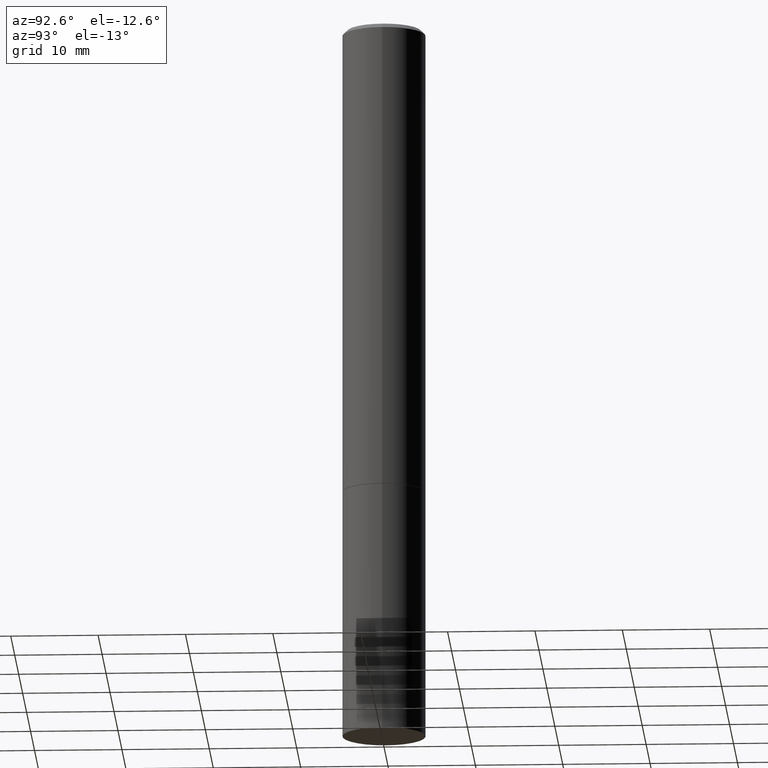
[diagram: clean part render]
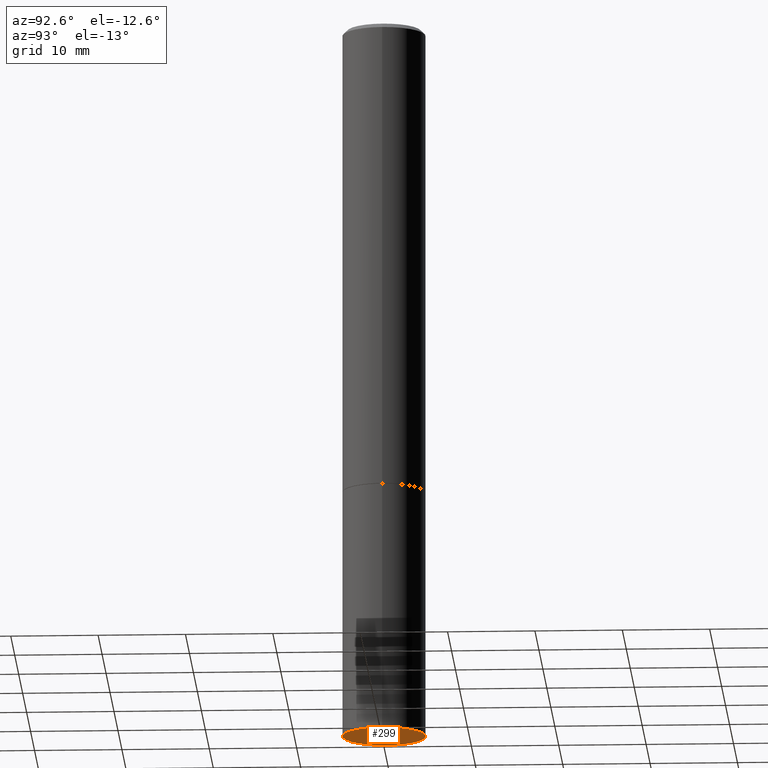
[diagram: same view with one face highlighted and labeled with its STEP entity id]
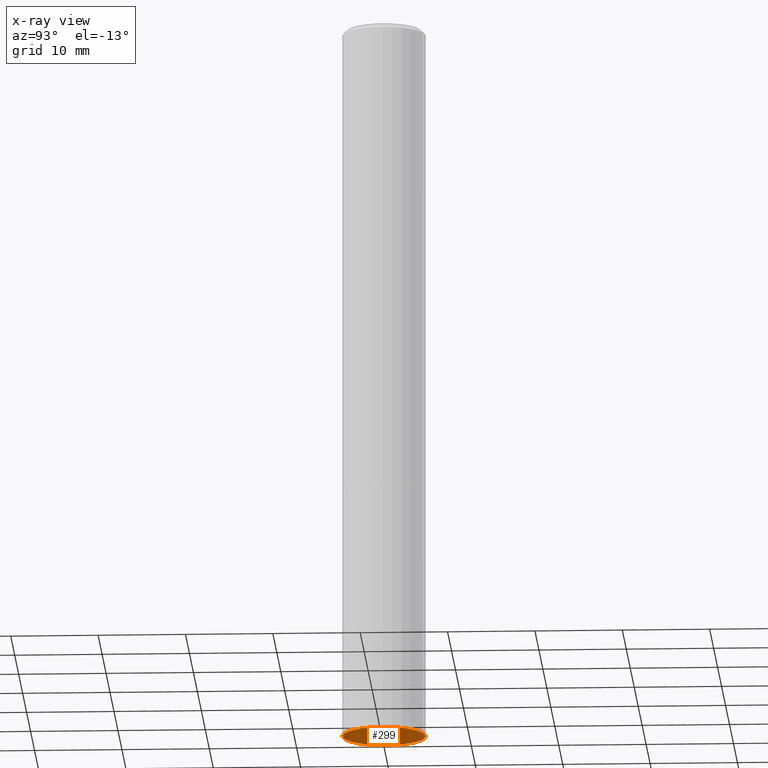
[diagram: x-ray of the same camera — body ghosted, the highlighted face saturated]
A machine part, auxiliary view. The second image highlights one B-rep face of the part: STEP entity #299.
The next image is the same camera in x-ray: the body ghosted, the highlighted face saturated — about 0% of this face is hidden behind the body in this view.
In plain terms, the highlighted planar face has unit normal (0, -0, -1).
Its self-contained STEP definition (entity closure, byte-faithful):
#8 = DIRECTION ( 'NONE',  ( 1.000000000000000000, -6.982962677686261189E-15, 0.000000000000000000 ) ) ;
#17 = VERTEX_POINT ( 'NONE', #69 ) ;
#28 = CARTESIAN_POINT ( 'NONE',  ( -0.1875000000000000278, -8.051088468590765387E-15, -3.250000000000000000 ) ) ;
#69 = CARTESIAN_POINT ( 'NONE',  ( 0.1875000000000000278, -1.265661985330639786E-14, -3.250000000000000000 ) ) ;
#70 = CARTESIAN_POINT ( 'NONE',  ( 7.947773620101693940E-29, -1.134731435124022443E-14, -3.250000000000000000 ) ) ;
#101 = DIRECTION ( 'NONE',  ( -1.000000000000000000, 6.982962677686265922E-15, -4.876176775795935793E-29 ) ) ;
#105 = FACE_OUTER_BOUND ( 'NONE', #240, .T. ) ;
#122 = ORIENTED_EDGE ( 'NONE', *, *, #261, .F. ) ;
#126 = DIRECTION ( 'NONE',  ( -2.445468806185136597E-29, 3.491481338843145583E-15, 1.000000000000000000 ) ) ;
#134 = VERTEX_POINT ( 'NONE', #28 ) ;
#162 = AXIS2_PLACEMENT_3D ( 'NONE', #70, #291, #8 ) ;
#170 = CIRCLE ( 'NONE', #294, 0.1875000000000000278 ) ;
#180 = CARTESIAN_POINT ( 'NONE',  ( 1.309305502066254683E-15, 0.1874999999999886757, -3.250000000000000444 ) ) ;
#201 = AXIS2_PLACEMENT_3D ( 'NONE', #180, #213, #101 ) ;
#204 = DIRECTION ( 'NONE',  ( 1.000000000000000000, -6.982962677686261189E-15, 0.000000000000000000 ) ) ;
#213 = DIRECTION ( 'NONE',  ( 2.438088387897960049E-29, -3.491481338843145188E-15, -1.000000000000000000 ) ) ;
#240 = EDGE_LOOP ( 'NONE', ( #353, #122 ) ) ;
#261 = EDGE_CURVE ( 'NONE', #134, #17, #314, .T. ) ;
#263 = CARTESIAN_POINT ( 'NONE',  ( 7.947773620101693940E-29, -1.134731435124022443E-14, -3.250000000000000000 ) ) ;
#291 = DIRECTION ( 'NONE',  ( -2.445468806185136597E-29, 3.491481338843145583E-15, 1.000000000000000000 ) ) ;
#294 = AXIS2_PLACEMENT_3D ( 'NONE', #263, #126, #204 ) ;
#296 = PLANE ( 'NONE',  #201 ) ;
#299 = ADVANCED_FACE ( 'NONE', ( #105 ), #296, .T. ) ;
#314 = CIRCLE ( 'NONE', #162, 0.1875000000000000278 ) ;
#353 = ORIENTED_EDGE ( 'NONE', *, *, #356, .F. ) ;
#356 = EDGE_CURVE ( 'NONE', #17, #134, #170, .T. ) ;